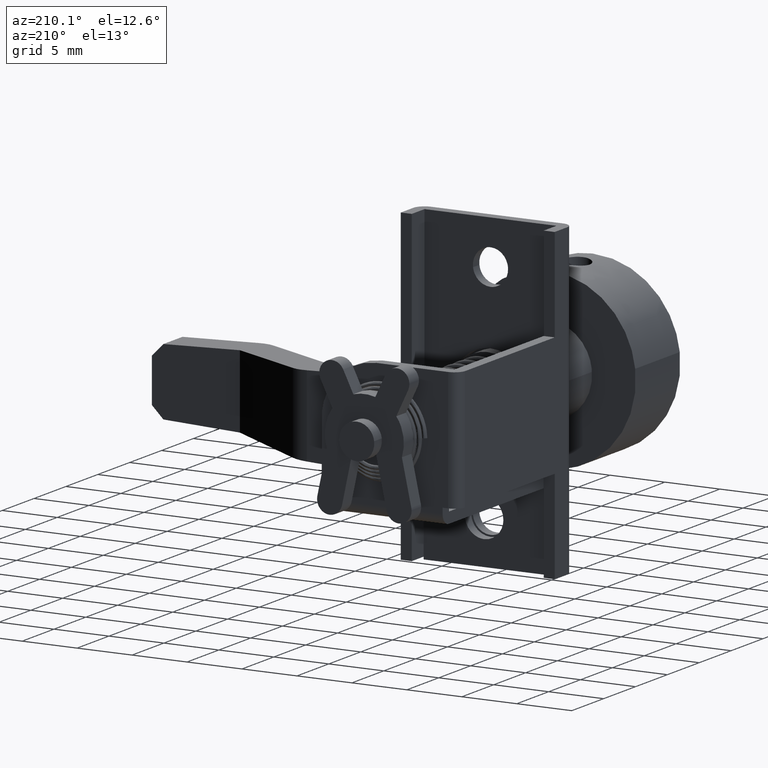
[diagram: clean part render]
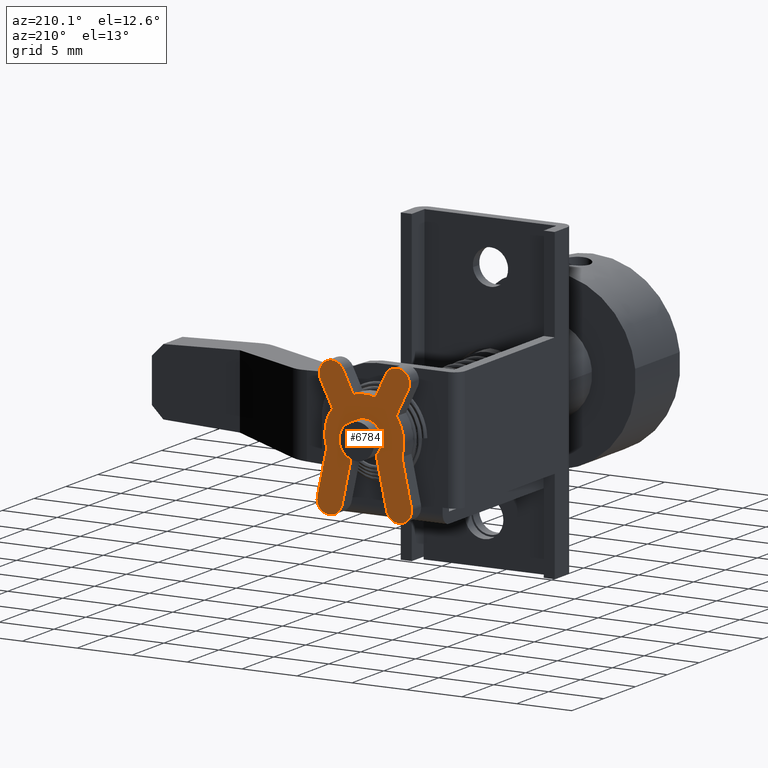
[diagram: same view with one face highlighted and labeled with its STEP entity id]
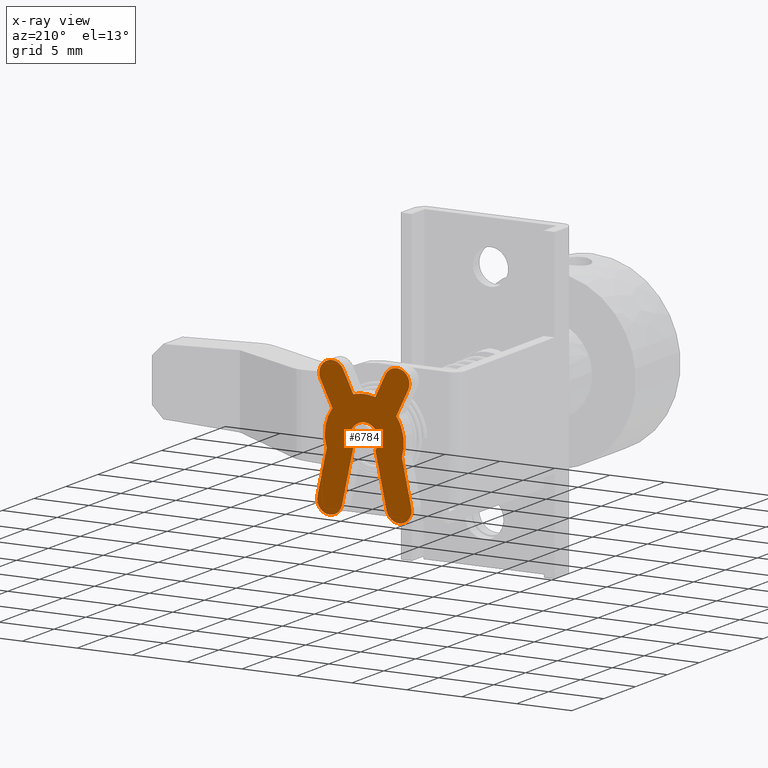
[diagram: x-ray of the same camera — body ghosted, the highlighted face saturated]
A machine part, auxiliary view. The second image highlights one B-rep face of the part: STEP entity #6784.
The next image is the same camera in x-ray: the body ghosted, the highlighted face saturated — about 0% of this face is hidden behind the body in this view.
In plain terms, the highlighted face is a freeform B-spline surface patch.
Its self-contained STEP definition (entity closure, byte-faithful):
#6587=CARTESIAN_POINT('',(20.800000000000001,-4.729414026677909,6.625418472238993));
#6588=CARTESIAN_POINT('',(20.800000000000001,4.730413766388337,6.625418472238993));
#6589=CARTESIAN_POINT('',(20.800000000000001,-4.729414026677909,-7.125109663541650));
#6590=CARTESIAN_POINT('',(20.800000000000001,4.730413766388337,-7.125109663541650));
#6591=B_SPLINE_SURFACE_WITH_KNOTS('',1,1,((#6587,#6589),(#6588,#6590)),.UNSPECIFIED.,.F.,.F.,.U.,(2,2),(2,2),(0.0,9.459827793066246),(0.0,13.750528135780639),.UNSPECIFIED.);
#6592=CARTESIAN_POINT('',(20.800000000000001,-2.908044670266961,2.122092409800270));
#6593=VERTEX_POINT('',#6592);
#6594=CARTESIAN_POINT('',(20.800000000000001,-3.417285508513460,-1.132324932739680));
#6595=VERTEX_POINT('',#6594);
#6596=CARTESIAN_POINT('',(20.800000000000001,-2.908044670266961,2.122092409800271));
#6597=CARTESIAN_POINT('',(20.800000000000001,-3.999872945744902,0.625887351675952));
#6598=CARTESIAN_POINT('',(20.800000000000001,-3.417285508513458,-1.132324932739678));
#6606=(BOUNDED_CURVE()B_SPLINE_CURVE(2,(#6596,#6597,#6598),.UNSPECIFIED.,.F.,.U.)CURVE()GEOMETRIC_REPRESENTATION_ITEM()QUASI_UNIFORM_CURVE()RATIONAL_B_SPLINE_CURVE((1.0,0.889208292541104,1.0))REPRESENTATION_ITEM(''));
#6607=EDGE_CURVE('',#6593,#6595,#6606,.T.);
#6608=ORIENTED_EDGE('',*,*,#6607,.T.);
#6609=CARTESIAN_POINT('',(20.800000000000001,-4.278941978240030,-5.130933777666410));
#6610=VERTEX_POINT('',#6609);
#6611=CARTESIAN_POINT('',(20.800000000000001,-3.417285508513460,-1.132324932739680));
#6612=CARTESIAN_POINT('',(20.800000000000001,-4.278941978240030,-5.130933777666410));
#6613=QUASI_UNIFORM_CURVE('',1,(#6611,#6612),.UNSPECIFIED.,.F.,.U.);
#6614=EDGE_CURVE('',#6595,#6610,#6613,.T.);
#6615=ORIENTED_EDGE('',*,*,#6614,.T.);
#6616=CARTESIAN_POINT('',(20.800000000000001,-2.025000004435290,-5.592000020601260));
#6617=VERTEX_POINT('',#6616);
#6618=CARTESIAN_POINT('',(20.800000000000001,-4.278941978240030,-5.130933777666411));
#6619=CARTESIAN_POINT('',(20.800000000000008,-4.495653522065246,-6.248726628928711));
#6620=CARTESIAN_POINT('',(20.800000000000001,-3.380146909772096,-6.476914598573195));
#6621=CARTESIAN_POINT('',(20.800000000000008,-2.264640297478946,-6.705102568217680));
#6622=CARTESIAN_POINT('',(20.800000000000001,-2.025000004435285,-5.592000020601262));
#6630=(BOUNDED_CURVE()B_SPLINE_CURVE(2,(#6618,#6619,#6620,#6621,#6622),.UNSPECIFIED.,.F.,.U.)B_SPLINE_CURVE_WITH_KNOTS((3,2,3),(0.0,0.500000000000000,1.0),.UNSPECIFIED.)CURVE()GEOMETRIC_REPRESENTATION_ITEM()RATIONAL_B_SPLINE_CURVE((1.0,0.710731060503433,1.0,0.710731060503433,1.0))REPRESENTATION_ITEM(''));
#6631=EDGE_CURVE('',#6610,#6617,#6630,.T.);
#6632=ORIENTED_EDGE('',*,*,#6631,.T.);
#6633=CARTESIAN_POINT('',(20.800000000000001,-0.999944256933872,-0.830729488476824));
#6634=VERTEX_POINT('',#6633);
#6635=CARTESIAN_POINT('',(20.800000000000001,-2.025000004435290,-5.592000020601260));
#6636=CARTESIAN_POINT('',(20.800000000000001,-0.999944256933872,-0.830729488476824));
#6637=QUASI_UNIFORM_CURVE('',1,(#6635,#6636),.UNSPECIFIED.,.F.,.U.);
#6638=EDGE_CURVE('',#6617,#6634,#6637,.T.);
#6639=ORIENTED_EDGE('',*,*,#6638,.T.);
#6640=CARTESIAN_POINT('',(20.800000000000001,0.999880620875483,-0.830806080862231));
#6641=VERTEX_POINT('',#6640);
#6642=CARTESIAN_POINT('',(20.800000000000001,0.999880620875482,-0.830806080862231));
#6643=CARTESIAN_POINT('',(20.800000000000004,1.781162380668739,0.109471691599467));
#6644=CARTESIAN_POINT('',(20.800000000000001,0.890615363551052,0.946997504857763));
#6645=CARTESIAN_POINT('',(20.800000000000004,0.000068346433363,1.784523318116059));
#6646=CARTESIAN_POINT('',(20.800000000000001,-0.890542821788871,0.947065722408068));
#6647=CARTESIAN_POINT('',(20.800000000000004,-1.781153990011105,0.109608126700077));
#6648=CARTESIAN_POINT('',(20.800000000000001,-0.999944256933873,-0.830729488476823));
#6656=(BOUNDED_CURVE()B_SPLINE_CURVE(2,(#6642,#6643,#6644,#6645,#6646,#6647,#6648),.UNSPECIFIED.,.F.,.U.)B_SPLINE_CURVE_WITH_KNOTS((3,2,2,3),(0.0,0.333333333333333,0.666666666666667,1.0),.UNSPECIFIED.)CURVE()GEOMETRIC_REPRESENTATION_ITEM()RATIONAL_B_SPLINE_CURVE((1.0,0.728485857174995,1.0,0.728485857174995,1.0,0.728485857174995,1.0))REPRESENTATION_ITEM(''));
#6657=EDGE_CURVE('',#6641,#6634,#6656,.T.);
#6658=ORIENTED_EDGE('',*,*,#6657,.F.);
#6659=CARTESIAN_POINT('',(20.800000000000001,2.021063866359925,-5.569096339910010));
#6660=VERTEX_POINT('',#6659);
#6661=CARTESIAN_POINT('',(20.800000000000001,0.999880620875483,-0.830806080862231));
#6662=CARTESIAN_POINT('',(20.800000000000001,2.021063866359925,-5.569096339910010));
#6663=QUASI_UNIFORM_CURVE('',1,(#6661,#6662),.UNSPECIFIED.,.F.,.U.);
#6664=EDGE_CURVE('',#6641,#6660,#6663,.T.);
#6665=ORIENTED_EDGE('',*,*,#6664,.T.);
#6666=CARTESIAN_POINT('',(20.800000000000001,4.274999992980940,-5.107999967427630));
#6667=VERTEX_POINT('',#6666);
#6668=CARTESIAN_POINT('',(20.800000000000001,2.021063866359928,-5.569096339910010));
#6669=CARTESIAN_POINT('',(20.799999999999994,2.148387213359567,-6.226401151619429));
#6670=CARTESIAN_POINT('',(20.800000000000001,2.782798182505714,-6.440372113234764));
#6671=CARTESIAN_POINT('',(20.799999999999994,3.417209151651862,-6.654343074850097));
#6672=CARTESIAN_POINT('',(20.800000000000001,3.916623298559729,-6.208421153370749));
#6673=CARTESIAN_POINT('',(20.799999999999994,4.416037445467596,-5.762499231891403));
#6674=CARTESIAN_POINT('',(20.800000000000001,4.274999992980937,-5.107999967427631));
#6682=(BOUNDED_CURVE()B_SPLINE_CURVE(2,(#6668,#6669,#6670,#6671,#6672,#6673,#6674),.UNSPECIFIED.,.F.,.U.)B_SPLINE_CURVE_WITH_KNOTS((3,2,2,3),(0.0,0.333333333333333,0.666666666666667,1.0),.UNSPECIFIED.)CURVE()GEOMETRIC_REPRESENTATION_ITEM()RATIONAL_B_SPLINE_CURVE((1.0,0.864277815174300,1.0,0.864277815174300,1.0,0.864277815174300,1.0))REPRESENTATION_ITEM(''));
#6683=EDGE_CURVE('',#6660,#6667,#6682,.T.);
#6684=ORIENTED_EDGE('',*,*,#6683,.T.);
#6685=CARTESIAN_POINT('',(20.800000000000001,3.417891232857165,-1.130495254460686));
#6686=VERTEX_POINT('',#6685);
#6687=CARTESIAN_POINT('',(20.800000000000001,4.274999992980940,-5.107999967427630));
#6688=CARTESIAN_POINT('',(20.800000000000001,3.417891232857165,-1.130495254460686));
#6689=QUASI_UNIFORM_CURVE('',1,(#6687,#6688),.UNSPECIFIED.,.F.,.U.);
#6690=EDGE_CURVE('',#6667,#6686,#6689,.T.);
#6691=ORIENTED_EDGE('',*,*,#6690,.T.);
#6692=CARTESIAN_POINT('',(20.800000000000001,2.908646129486365,2.121267944750025));
#6693=VERTEX_POINT('',#6692);
#6694=CARTESIAN_POINT('',(20.800000000000001,3.417891232857164,-1.130495254460687));
#6695=CARTESIAN_POINT('',(20.800000000000004,3.998952033543858,0.626259237508811));
#6696=CARTESIAN_POINT('',(20.800000000000001,2.908646129486364,2.121267944750024));
#6704=(BOUNDED_CURVE()B_SPLINE_CURVE(2,(#6694,#6695,#6696),.UNSPECIFIED.,.F.,.U.)CURVE()GEOMETRIC_REPRESENTATION_ITEM()QUASI_UNIFORM_CURVE()RATIONAL_B_SPLINE_CURVE((1.0,0.889395531839123,1.0))REPRESENTATION_ITEM(''));
#6705=EDGE_CURVE('',#6686,#6693,#6704,.T.);
#6706=ORIENTED_EDGE('',*,*,#6705,.T.);
#6707=CARTESIAN_POINT('',(20.800000000000001,3.986000000000000,4.350000000000000));
#6708=VERTEX_POINT('',#6707);
#6709=CARTESIAN_POINT('',(20.800000000000001,2.908646129486365,2.121267944750025));
#6710=CARTESIAN_POINT('',(20.800000000000001,3.986000000000000,4.350000000000000));
#6711=QUASI_UNIFORM_CURVE('',1,(#6709,#6710),.UNSPECIFIED.,.F.,.U.);
#6712=EDGE_CURVE('',#6693,#6708,#6711,.T.);
#6713=ORIENTED_EDGE('',*,*,#6712,.T.);
#6714=CARTESIAN_POINT('',(20.800000000000001,1.921926053485405,5.365328982784750));
#6715=VERTEX_POINT('',#6714);
#6716=CARTESIAN_POINT('',(20.800000000000001,3.985999999999976,4.350000000000011));
#6717=CARTESIAN_POINT('',(20.799999999999997,4.483136710974973,5.378431376093024));
#6718=CARTESIAN_POINT('',(20.800000000000001,3.458148347508194,5.882628618736518));
#6719=CARTESIAN_POINT('',(20.799999999999997,2.433159984041415,6.386825861380011));
#6720=CARTESIAN_POINT('',(20.800000000000001,1.921926053485404,5.365328982784751));
#6728=(BOUNDED_CURVE()B_SPLINE_CURVE(2,(#6716,#6717,#6718,#6719,#6720),.UNSPECIFIED.,.F.,.U.)B_SPLINE_CURVE_WITH_KNOTS((3,2,3),(0.0,0.500000000000000,1.0),.UNSPECIFIED.)CURVE()GEOMETRIC_REPRESENTATION_ITEM()RATIONAL_B_SPLINE_CURVE((1.0,0.709533921158306,1.0,0.709533921158306,1.0))REPRESENTATION_ITEM(''));
#6729=EDGE_CURVE('',#6708,#6715,#6728,.T.);
#6730=ORIENTED_EDGE('',*,*,#6729,.T.);
#6731=CARTESIAN_POINT('',(20.800000000000001,1.000137102990690,3.458283645859805));
#6732=VERTEX_POINT('',#6731);
#6733=CARTESIAN_POINT('',(20.800000000000001,1.921926053485405,5.365328982784750));
#6734=CARTESIAN_POINT('',(20.800000000000001,1.000137102990690,3.458283645859805));
#6735=QUASI_UNIFORM_CURVE('',1,(#6733,#6734),.UNSPECIFIED.,.F.,.U.);
#6736=EDGE_CURVE('',#6715,#6732,#6735,.T.);
#6737=ORIENTED_EDGE('',*,*,#6736,.T.);
#6738=CARTESIAN_POINT('',(20.800000000000001,-1.000136971510788,3.458283683883845));
#6739=VERTEX_POINT('',#6738);
#6740=CARTESIAN_POINT('',(20.800000000000001,1.000137102990690,3.458283645859806));
#6741=CARTESIAN_POINT('',(20.800000000000004,0.000000071238236,3.747523701321455));
#6742=CARTESIAN_POINT('',(20.800000000000001,-1.000136971510787,3.458283683883847));
#6750=(BOUNDED_CURVE()B_SPLINE_CURVE(2,(#6740,#6741,#6742),.UNSPECIFIED.,.F.,.U.)CURVE()GEOMETRIC_REPRESENTATION_ITEM()QUASI_UNIFORM_CURVE()RATIONAL_B_SPLINE_CURVE((1.0,0.960634351353285,1.0))REPRESENTATION_ITEM(''));
#6751=EDGE_CURVE('',#6732,#6739,#6750,.T.);
#6752=ORIENTED_EDGE('',*,*,#6751,.T.);
#6753=CARTESIAN_POINT('',(20.800000000000001,-1.913999990837245,5.350999981022830));
#6754=VERTEX_POINT('',#6753);
#6755=CARTESIAN_POINT('',(20.800000000000001,-1.000136971510788,3.458283683883845));
#6756=CARTESIAN_POINT('',(20.800000000000001,-1.913999990837245,5.350999981022830));
#6757=QUASI_UNIFORM_CURVE('',1,(#6755,#6756),.UNSPECIFIED.,.F.,.U.);
#6758=EDGE_CURVE('',#6739,#6754,#6757,.T.);
#6759=ORIENTED_EDGE('',*,*,#6758,.T.);
#6760=CARTESIAN_POINT('',(20.800000000000001,-4.000418441206906,4.381896273917350));
#6761=VERTEX_POINT('',#6760);
#6762=CARTESIAN_POINT('',(20.800000000000001,-1.913999990837245,5.350999981022829));
#6763=CARTESIAN_POINT('',(20.800000000000004,-2.406746922847505,6.371536070667275));
#6764=CARTESIAN_POINT('',(20.800000000000001,-3.434552947495280,5.894138725712322));
#6765=CARTESIAN_POINT('',(20.800000000000004,-4.462358972143053,5.416741380757371));
#6766=CARTESIAN_POINT('',(20.800000000000001,-4.000418441206906,4.381896273917351));
#6774=(BOUNDED_CURVE()B_SPLINE_CURVE(2,(#6762,#6763,#6764,#6765,#6766),.UNSPECIFIED.,.F.,.U.)B_SPLINE_CURVE_WITH_KNOTS((3,2,3),(0.0,0.500000000000000,1.0),.UNSPECIFIED.)CURVE()GEOMETRIC_REPRESENTATION_ITEM()RATIONAL_B_SPLINE_CURVE((1.0,0.712385599917501,1.0,0.712385599917501,1.0))REPRESENTATION_ITEM(''));
#6775=EDGE_CURVE('',#6754,#6761,#6774,.T.);
#6776=ORIENTED_EDGE('',*,*,#6775,.T.);
#6777=CARTESIAN_POINT('',(20.800000000000001,-4.000418441206906,4.381896273917350));
#6778=CARTESIAN_POINT('',(20.800000000000001,-2.908044670266961,2.122092409800270));
#6779=QUASI_UNIFORM_CURVE('',1,(#6777,#6778),.UNSPECIFIED.,.F.,.U.);
#6780=EDGE_CURVE('',#6761,#6593,#6779,.T.);
#6781=ORIENTED_EDGE('',*,*,#6780,.T.);
#6782=EDGE_LOOP('',(#6608,#6615,#6632,#6639,#6658,#6665,#6684,#6691,#6706,#6713,#6730,#6737,#6752,#6759,#6776,#6781));
#6783=FACE_OUTER_BOUND('',#6782,.T.);
#6784=ADVANCED_FACE('',(#6783),#6591,.F.);